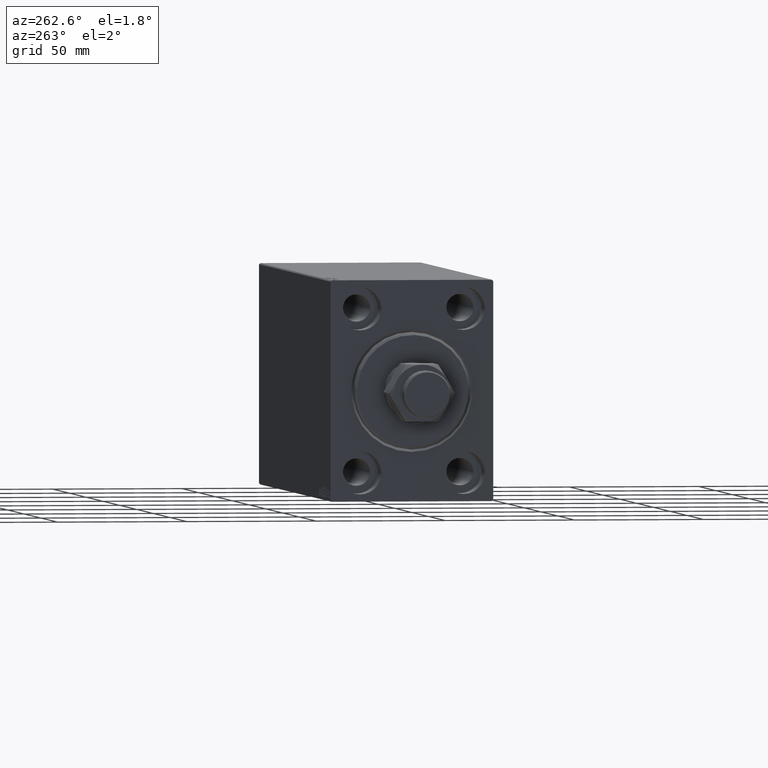
[diagram: clean part render]
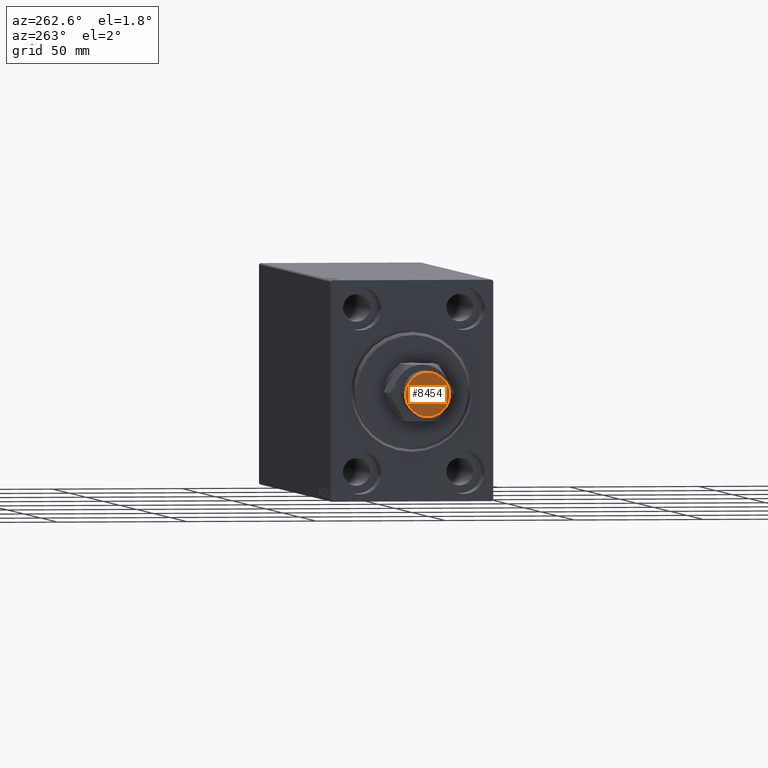
[diagram: same view with one face highlighted and labeled with its STEP entity id]
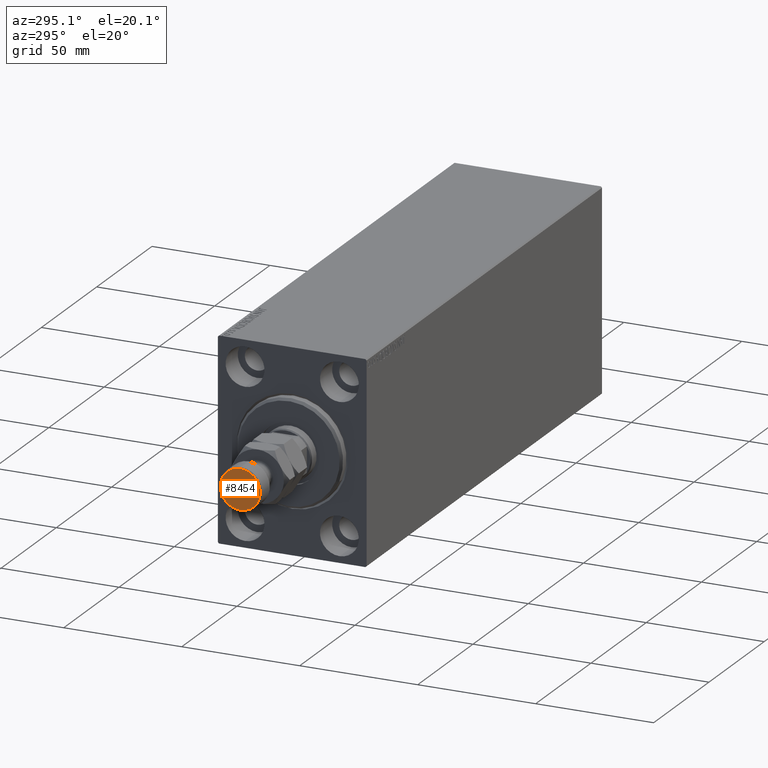
[diagram: same view with one face highlighted and labeled with its STEP entity id]
A machine part, auxiliary view. The second image highlights one B-rep face of the part: STEP entity #8454.
A second angle (auxiliary view) of the same face is appended — the face is thin or edge-on in the first view.
In plain terms, the highlighted planar face has unit normal (-1, 0, 0).
Its self-contained STEP definition (entity closure, byte-faithful):
#1445 = FACE_OUTER_BOUND ( 'NONE', #38161, .T. ) ;
#3002 = CARTESIAN_POINT ( 'NONE',  ( 0.000000000000000000, 0.000000000000000000, 35.00000000000000000 ) ) ;
#3489 = CARTESIAN_POINT ( 'NONE',  ( 0.000000000000000000, 0.000000000000000000, 35.00000000000000000 ) ) ;
#3500 = AXIS2_PLACEMENT_3D ( 'NONE', #3002, #10803, #24331 ) ;
#4268 = VERTEX_POINT ( 'NONE', #19527 ) ;
#5129 = DIRECTION ( 'NONE',  ( 0.000000000000000000, 0.000000000000000000, 1.000000000000000000 ) ) ;
#8454 = ADVANCED_FACE ( 'NONE', ( #1445 ), #12261, .T. ) ;
#10498 = CIRCLE ( 'NONE', #24402, 8.499999999999992895 ) ;
#10803 = DIRECTION ( 'NONE',  ( 0.000000000000000000, 0.000000000000000000, 1.000000000000000000 ) ) ;
#12261 = PLANE ( 'NONE',  #44393 ) ;
#14497 = CIRCLE ( 'NONE', #3500, 8.499999999999992895 ) ;
#15447 = DIRECTION ( 'NONE',  ( 1.000000000000000000, 0.000000000000000000, -0.000000000000000000 ) ) ;
#15685 = VERTEX_POINT ( 'NONE', #19326 ) ;
#19326 = CARTESIAN_POINT ( 'NONE',  ( -8.499999999999992895, 0.000000000000000000, 35.00000000000000000 ) ) ;
#19527 = CARTESIAN_POINT ( 'NONE',  ( 8.499999999999992895, 1.071565949253933532E-15, 35.00000000000000000 ) ) ;
#20240 = DIRECTION ( 'NONE',  ( 0.000000000000000000, 0.000000000000000000, 1.000000000000000000 ) ) ;
#24331 = DIRECTION ( 'NONE',  ( 1.000000000000000000, 0.000000000000000000, 0.000000000000000000 ) ) ;
#24402 = AXIS2_PLACEMENT_3D ( 'NONE', #3489, #20240, #37894 ) ;
#29032 = ORIENTED_EDGE ( 'NONE', *, *, #42891, .T. ) ;
#30838 = EDGE_CURVE ( 'NONE', #4268, #15685, #10498, .T. ) ;
#37894 = DIRECTION ( 'NONE',  ( 1.000000000000000000, 0.000000000000000000, 0.000000000000000000 ) ) ;
#38161 = EDGE_LOOP ( 'NONE', ( #29032, #45205 ) ) ;
#42891 = EDGE_CURVE ( 'NONE', #15685, #4268, #14497, .T. ) ;
#43914 = CARTESIAN_POINT ( 'NONE',  ( 0.000000000000000000, 0.000000000000000000, 35.00000000000000000 ) ) ;
#44393 = AXIS2_PLACEMENT_3D ( 'NONE', #43914, #5129, #15447 ) ;
#45205 = ORIENTED_EDGE ( 'NONE', *, *, #30838, .T. ) ;